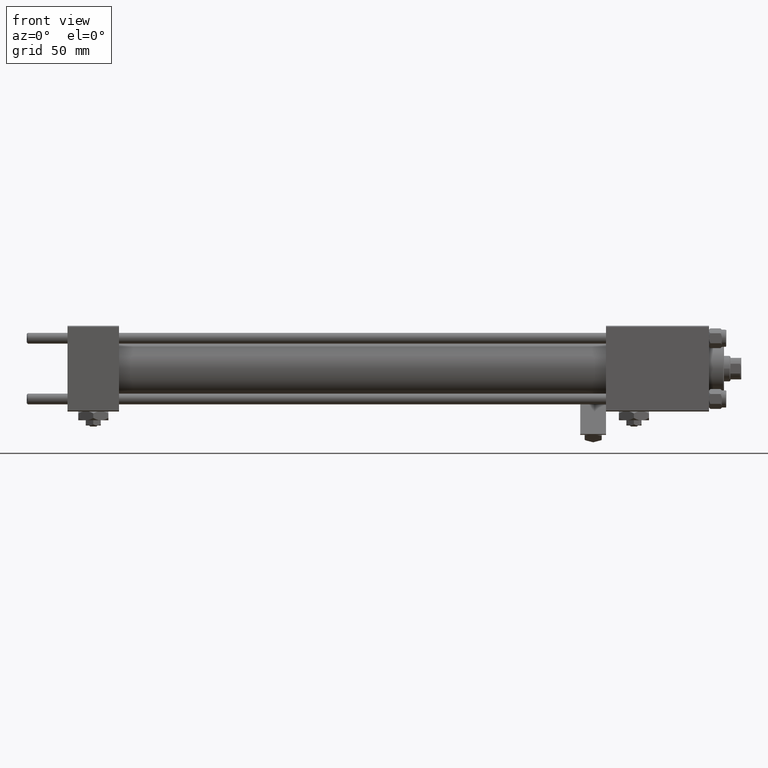
[diagram: clean part render]
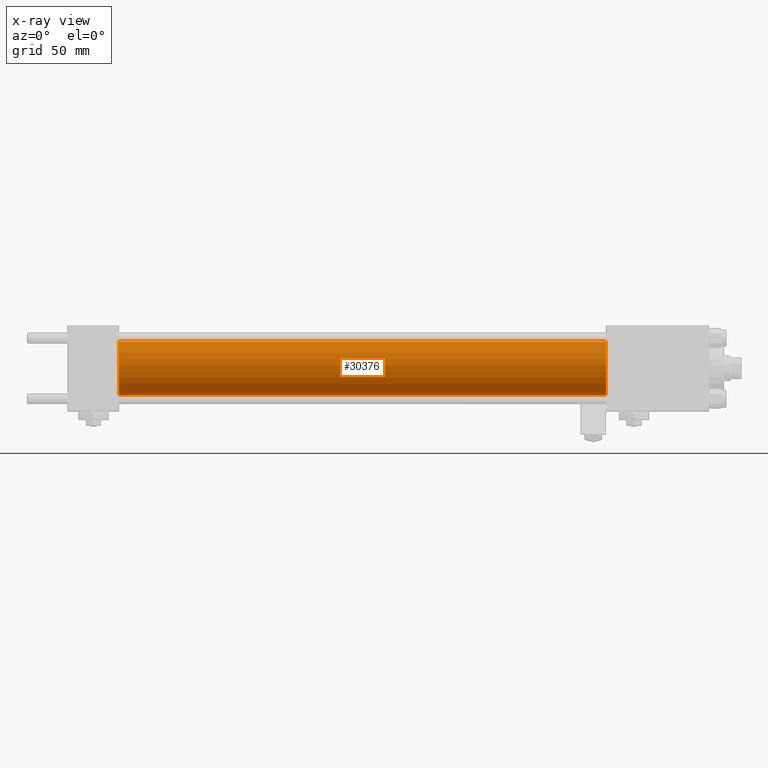
[diagram: x-ray — body ghosted, one internal face saturated and labeled with its STEP entity id]
A machine part, front view, then the same camera in x-ray: the body is ghosted and one INTERNAL B-rep face — a face not visible from any outside direction — is saturated and labeled: STEP entity #30376.
In plain terms, the highlighted cylindrical surface (edge-blend (fillet) strip) has radius 12.5 mm, axis along (-1, -0, -0).
Its self-contained STEP definition (entity closure, byte-faithful):
#2254 = CARTESIAN_POINT ( 'NONE',  ( 251.0000000000000000, 1.530808498934190732E-15, -12.49999999999999645 ) ) ;
#3381 = CARTESIAN_POINT ( 'NONE',  ( 251.0000000000000000, 0.000000000000000000, 12.49999999999999645 ) ) ;
#6041 = CARTESIAN_POINT ( 'NONE',  ( 251.0000000000000000, 1.530808498934190732E-15, -12.49999999999999645 ) ) ;
#6997 = AXIS2_PLACEMENT_3D ( 'NONE', #43592, #24362, #40649 ) ;
#8224 = ORIENTED_EDGE ( 'NONE', *, *, #46437, .F. ) ;
#10501 = CARTESIAN_POINT ( 'NONE',  ( 251.0000000000000000, 0.000000000000000000, 0.000000000000000000 ) ) ;
#13292 = ORIENTED_EDGE ( 'NONE', *, *, #27116, .T. ) ;
#14058 = CARTESIAN_POINT ( 'NONE',  ( 251.0000000000000000, 0.000000000000000000, 12.49999999999999645 ) ) ;
#14960 = CYLINDRICAL_SURFACE ( 'NONE', #51367, 12.49999999999999645 ) ;
#17077 = EDGE_LOOP ( 'NONE', ( #13292, #32608, #8224, #46570 ) ) ;
#17547 = VERTEX_POINT ( 'NONE', #14058 ) ;
#18801 = DIRECTION ( 'NONE',  ( -1.000000000000000000, -0.000000000000000000, -0.000000000000000000 ) ) ;
#20116 = VERTEX_POINT ( 'NONE', #25648 ) ;
#22035 = EDGE_CURVE ( 'NONE', #27620, #35291, #24042, .T. ) ;
#23095 = AXIS2_PLACEMENT_3D ( 'NONE', #10501, #47077, #39341 ) ;
#23245 = DIRECTION ( 'NONE',  ( 0.000000000000000000, 0.000000000000000000, 1.000000000000000000 ) ) ;
#24042 = LINE ( 'NONE', #2254, #32296 ) ;
#24362 = DIRECTION ( 'NONE',  ( 1.000000000000000000, 0.000000000000000000, 0.000000000000000000 ) ) ;
#25648 = CARTESIAN_POINT ( 'NONE',  ( 24.00000000000000000, 0.000000000000000000, 12.49999999999999645 ) ) ;
#26461 = CARTESIAN_POINT ( 'NONE',  ( 251.0000000000000000, 0.000000000000000000, 0.000000000000000000 ) ) ;
#27116 = EDGE_CURVE ( 'NONE', #17547, #27620, #46088, .T. ) ;
#27620 = VERTEX_POINT ( 'NONE', #6041 ) ;
#29550 = EDGE_CURVE ( 'NONE', #17547, #20116, #39975, .T. ) ;
#30032 = CIRCLE ( 'NONE', #6997, 12.49999999999999645 ) ;
#30376 = ADVANCED_FACE ( 'NONE', ( #51288 ), #14960, .F. ) ;
#32296 = VECTOR ( 'NONE', #18801, 1000.000000000000000 ) ;
#32608 = ORIENTED_EDGE ( 'NONE', *, *, #22035, .T. ) ;
#35291 = VERTEX_POINT ( 'NONE', #48674 ) ;
#35975 = DIRECTION ( 'NONE',  ( -1.000000000000000000, -0.000000000000000000, -0.000000000000000000 ) ) ;
#39341 = DIRECTION ( 'NONE',  ( 0.000000000000000000, 0.000000000000000000, -1.000000000000000000 ) ) ;
#39975 = LINE ( 'NONE', #3381, #45353 ) ;
#40649 = DIRECTION ( 'NONE',  ( 0.000000000000000000, 0.000000000000000000, -1.000000000000000000 ) ) ;
#43592 = CARTESIAN_POINT ( 'NONE',  ( 24.00000000000000000, 0.000000000000000000, 0.000000000000000000 ) ) ;
#45353 = VECTOR ( 'NONE', #35975, 1000.000000000000000 ) ;
#46088 = CIRCLE ( 'NONE', #23095, 12.49999999999999645 ) ;
#46437 = EDGE_CURVE ( 'NONE', #20116, #35291, #30032, .T. ) ;
#46570 = ORIENTED_EDGE ( 'NONE', *, *, #29550, .F. ) ;
#47077 = DIRECTION ( 'NONE',  ( 1.000000000000000000, 0.000000000000000000, 0.000000000000000000 ) ) ;
#48674 = CARTESIAN_POINT ( 'NONE',  ( 24.00000000000000000, 1.530808498934190732E-15, -12.49999999999999645 ) ) ;
#51018 = DIRECTION ( 'NONE',  ( -1.000000000000000000, -0.000000000000000000, -0.000000000000000000 ) ) ;
#51288 = FACE_OUTER_BOUND ( 'NONE', #17077, .T. ) ;
#51367 = AXIS2_PLACEMENT_3D ( 'NONE', #26461, #51018, #23245 ) ;